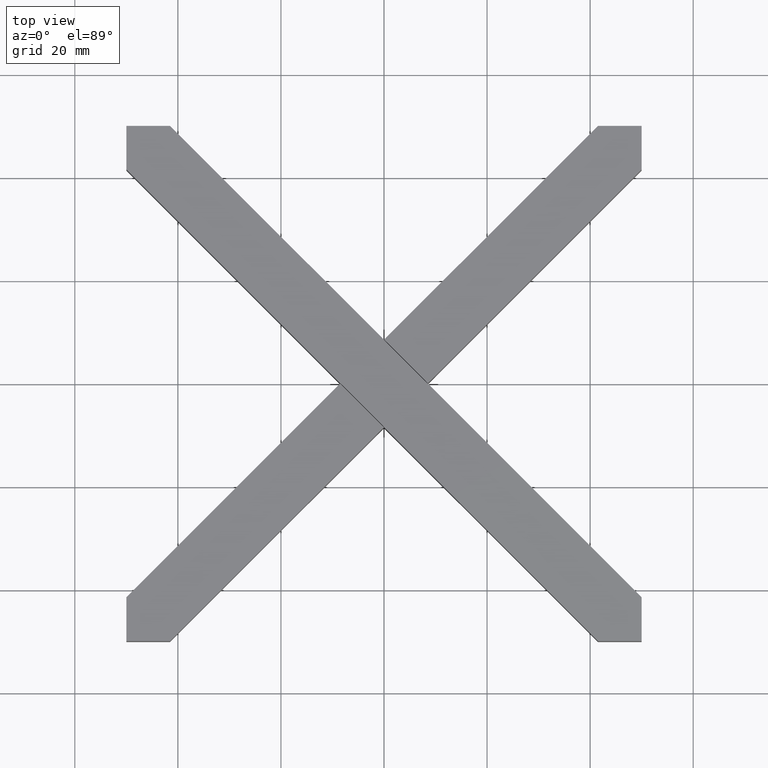
[diagram: clean part render]
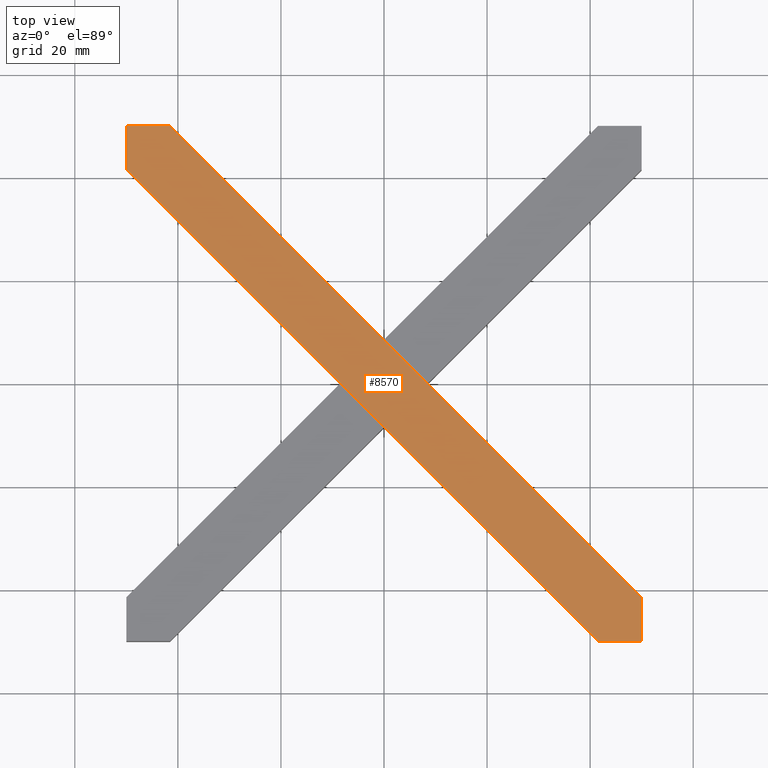
[diagram: same view with one face highlighted and labeled with its STEP entity id]
A machine part, top view. The second image highlights one B-rep face of the part: STEP entity #8570.
In plain terms, the highlighted planar face has unit normal (-0, 0, 1).
Its self-contained STEP definition (entity closure, byte-faithful):
#78 = CARTESIAN_POINT ( 'NONE',  ( -4.242640687119286547, 4.242640687119385134, 12.00000000000000000 ) ) ;
#231 = VERTEX_POINT ( 'NONE', #5825 ) ;
#373 = DIRECTION ( 'NONE',  ( -1.000000000000000000, -0.000000000000000000, -0.000000000000000000 ) ) ;
#466 = CARTESIAN_POINT ( 'NONE',  ( 8.449926035179235129, -0.03535533905932477378, 12.00000000000000000 ) ) ;
#500 = VERTEX_POINT ( 'NONE', #6629 ) ;
#536 = LINE ( 'NONE', #5216, #10159 ) ;
#749 = EDGE_CURVE ( 'NONE', #10505, #13034, #536, .T. ) ;
#862 = CARTESIAN_POINT ( 'NONE',  ( -50.00000000000000000, 41.51471862576143224, 12.00000000000000000 ) ) ;
#916 = DIRECTION ( 'NONE',  ( -0.7071067811865474617, 0.7071067811865475727, -0.000000000000000000 ) ) ;
#1008 = DIRECTION ( 'NONE',  ( -0.7071067811865474617, 0.7071067811865474617, 0.000000000000000000 ) ) ;
#1102 = CARTESIAN_POINT ( 'NONE',  ( -41.51471862576143224, 50.00000000000000000, 12.00000000000000000 ) ) ;
#1143 = EDGE_CURVE ( 'NONE', #231, #5224, #4309, .T. ) ;
#1151 = CARTESIAN_POINT ( 'NONE',  ( 50.00000000000001421, -41.51471862576144645, 12.00000000000000000 ) ) ;
#1245 = VERTEX_POINT ( 'NONE', #6304 ) ;
#1263 = ORIENTED_EDGE ( 'NONE', *, *, #7335, .T. ) ;
#1398 = CARTESIAN_POINT ( 'NONE',  ( -5.847915467843689541E-15, 8.485281374238567764, 12.00000000000000000 ) ) ;
#1446 = CARTESIAN_POINT ( 'NONE',  ( -50.00000000000000000, 50.00000000000000000, 12.00000000000000000 ) ) ;
#1477 = ORIENTED_EDGE ( 'NONE', *, *, #2380, .F. ) ;
#1541 = VECTOR ( 'NONE', #6646, 999.9999999999998863 ) ;
#1671 = VERTEX_POINT ( 'NONE', #13559 ) ;
#1810 = ORIENTED_EDGE ( 'NONE', *, *, #6959, .T. ) ;
#1940 = VERTEX_POINT ( 'NONE', #13445 ) ;
#2081 = CARTESIAN_POINT ( 'NONE',  ( 50.00000000000001421, -41.51471862576144645, 12.00000000000000000 ) ) ;
#2332 = ORIENTED_EDGE ( 'NONE', *, *, #13676, .F. ) ;
#2360 = EDGE_CURVE ( 'NONE', #2839, #3286, #2665, .T. ) ;
#2380 = EDGE_CURVE ( 'NONE', #11008, #1245, #11950, .T. ) ;
#2414 = VECTOR ( 'NONE', #4330, 1000.000000000000114 ) ;
#2602 = DIRECTION ( 'NONE',  ( 1.000000000000000000, 0.000000000000000000, 0.000000000000000000 ) ) ;
#2665 = LINE ( 'NONE', #862, #10564 ) ;
#2839 = VERTEX_POINT ( 'NONE', #3722 ) ;
#3084 = LINE ( 'NONE', #10915, #2414 ) ;
#3130 = LINE ( 'NONE', #466, #10000 ) ;
#3224 = CARTESIAN_POINT ( 'NONE',  ( -8.485281374238573093, -2.378468515890075352E-15, 12.00000000000000000 ) ) ;
#3286 = VERTEX_POINT ( 'NONE', #3224 ) ;
#3596 = CARTESIAN_POINT ( 'NONE',  ( 4.242640687119269671, -4.242640687119368259, 12.00000000000000000 ) ) ;
#3644 = DIRECTION ( 'NONE',  ( 0.000000000000000000, -1.000000000000000000, 0.000000000000000000 ) ) ;
#3672 = ORIENTED_EDGE ( 'NONE', *, *, #4869, .F. ) ;
#3722 = CARTESIAN_POINT ( 'NONE',  ( -50.00000000000000000, 41.51471862576143224, 12.00000000000000000 ) ) ;
#3731 = PLANE ( 'NONE',  #5081 ) ;
#3867 = VECTOR ( 'NONE', #11078, 1000.000000000000114 ) ;
#4012 = ORIENTED_EDGE ( 'NONE', *, *, #14210, .F. ) ;
#4176 = VECTOR ( 'NONE', #373, 1000.000000000000000 ) ;
#4238 = VECTOR ( 'NONE', #3644, 1000.000000000000000 ) ;
#4309 = LINE ( 'NONE', #11348, #7075 ) ;
#4324 = CARTESIAN_POINT ( 'NONE',  ( -1.799775606325937360E-14, -8.485281374238557106, 12.00000000000000000 ) ) ;
#4330 = DIRECTION ( 'NONE',  ( -0.7071067811865392461, -0.7071067811865556774, -0.000000000000000000 ) ) ;
#4369 = ORIENTED_EDGE ( 'NONE', *, *, #8918, .F. ) ;
#4605 = LINE ( 'NONE', #5579, #1541 ) ;
#4869 = EDGE_CURVE ( 'NONE', #1245, #3286, #3084, .T. ) ;
#5081 = AXIS2_PLACEMENT_3D ( 'NONE', #5952, #13574, #2602 ) ;
#5109 = EDGE_CURVE ( 'NONE', #13331, #1671, #4605, .T. ) ;
#5216 = CARTESIAN_POINT ( 'NONE',  ( -41.51471862576143224, 50.00000000000000000, 12.00000000000000000 ) ) ;
#5224 = VERTEX_POINT ( 'NONE', #6348 ) ;
#5256 = CARTESIAN_POINT ( 'NONE',  ( -0.03535533905933258003, 8.449926035179242234, 12.00000000000000000 ) ) ;
#5579 = CARTESIAN_POINT ( 'NONE',  ( 8.485281374238560659, -1.084202172485504434E-14, 12.00000000000000000 ) ) ;
#5823 = CARTESIAN_POINT ( 'NONE',  ( 8.449926035179235129, -0.03535533905932477378, 12.00000000000000000 ) ) ;
#5825 = CARTESIAN_POINT ( 'NONE',  ( 41.51471862576144645, -50.00000000000000000, 12.00000000000000000 ) ) ;
#5887 = DIRECTION ( 'NONE',  ( 1.000000000000000000, 0.000000000000000000, 0.000000000000000000 ) ) ;
#5952 = CARTESIAN_POINT ( 'NONE',  ( 0.000000000000000000, 0.000000000000000000, 12.00000000000000000 ) ) ;
#5997 = DIRECTION ( 'NONE',  ( 0.7071067811865477948, -0.7071067811865473507, 0.000000000000000000 ) ) ;
#6055 = VERTEX_POINT ( 'NONE', #5256 ) ;
#6093 = CARTESIAN_POINT ( 'NONE',  ( -1.564418524095811927E-15, -8.485281374238574870, 12.00000000000000000 ) ) ;
#6214 = LINE ( 'NONE', #5823, #6914 ) ;
#6304 = CARTESIAN_POINT ( 'NONE',  ( -8.449926035179245787, 0.03535533905932564114, 12.00000000000000000 ) ) ;
#6348 = CARTESIAN_POINT ( 'NONE',  ( 50.00000000000001421, -50.00000000000000000, 12.00000000000000000 ) ) ;
#6434 = ORIENTED_EDGE ( 'NONE', *, *, #10160, .F. ) ;
#6587 = ORIENTED_EDGE ( 'NONE', *, *, #11498, .T. ) ;
#6629 = CARTESIAN_POINT ( 'NONE',  ( -50.00000000000000000, 50.00000000000000000, 12.00000000000000000 ) ) ;
#6630 = CARTESIAN_POINT ( 'NONE',  ( 0.03535533905931002863, -8.449926035179231576, 12.00000000000000000 ) ) ;
#6646 = DIRECTION ( 'NONE',  ( -0.7071067811865477948, 0.7071067811865473507, -0.000000000000000000 ) ) ;
#6792 = ORIENTED_EDGE ( 'NONE', *, *, #2360, .T. ) ;
#6914 = VECTOR ( 'NONE', #13486, 1000.000000000000114 ) ;
#6932 = CARTESIAN_POINT ( 'NONE',  ( -50.00000000000000000, 50.00000000000000000, 12.00000000000000000 ) ) ;
#6959 = EDGE_CURVE ( 'NONE', #500, #2839, #13174, .T. ) ;
#7075 = VECTOR ( 'NONE', #5887, 1000.000000000000000 ) ;
#7250 = ORIENTED_EDGE ( 'NONE', *, *, #749, .T. ) ;
#7335 = EDGE_CURVE ( 'NONE', #11810, #231, #11623, .T. ) ;
#7802 = EDGE_CURVE ( 'NONE', #5224, #13331, #9551, .T. ) ;
#8027 = VECTOR ( 'NONE', #5997, 999.9999999999998863 ) ;
#8152 = LINE ( 'NONE', #1446, #4176 ) ;
#8439 = DIRECTION ( 'NONE',  ( 0.7071067811865474617, -0.7071067811865474617, -0.000000000000000000 ) ) ;
#8570 = ADVANCED_FACE ( 'NONE', ( #10087 ), #3731, .T. ) ;
#8741 = ORIENTED_EDGE ( 'NONE', *, *, #7802, .T. ) ;
#8804 = DIRECTION ( 'NONE',  ( -0.000000000000000000, 1.000000000000000000, -0.000000000000000000 ) ) ;
#8918 = EDGE_CURVE ( 'NONE', #10505, #6055, #11957, .T. ) ;
#9142 = EDGE_LOOP ( 'NONE', ( #2332, #4012, #4369, #7250, #6587, #1810, #6792, #3672, #1477, #6434, #1263, #11169, #8741, #11368 ) ) ;
#9551 = LINE ( 'NONE', #1151, #11954 ) ;
#9700 = CARTESIAN_POINT ( 'NONE',  ( 0.03535533905931007720, -8.449926035179228023, 12.00000000000000000 ) ) ;
#10000 = VECTOR ( 'NONE', #8439, 1000.000000000000114 ) ;
#10087 = FACE_OUTER_BOUND ( 'NONE', #9142, .T. ) ;
#10159 = VECTOR ( 'NONE', #916, 1000.000000000000000 ) ;
#10160 = EDGE_CURVE ( 'NONE', #11810, #11008, #10214, .T. ) ;
#10214 = LINE ( 'NONE', #3596, #10557 ) ;
#10505 = VERTEX_POINT ( 'NONE', #1398 ) ;
#10557 = VECTOR ( 'NONE', #13342, 1000.000000000000114 ) ;
#10564 = VECTOR ( 'NONE', #10779, 1000.000000000000000 ) ;
#10779 = DIRECTION ( 'NONE',  ( 0.7071067811865474617, -0.7071067811865475727, 0.000000000000000000 ) ) ;
#10915 = CARTESIAN_POINT ( 'NONE',  ( -8.520636713297900400, -0.03535533905932911058, 12.00000000000000000 ) ) ;
#11008 = VERTEX_POINT ( 'NONE', #9700 ) ;
#11078 = DIRECTION ( 'NONE',  ( -0.7071067811865556774, -0.7071067811865392461, 0.000000000000000000 ) ) ;
#11169 = ORIENTED_EDGE ( 'NONE', *, *, #1143, .T. ) ;
#11348 = CARTESIAN_POINT ( 'NONE',  ( 41.51471862576144645, -50.00000000000000000, 12.00000000000000000 ) ) ;
#11368 = ORIENTED_EDGE ( 'NONE', *, *, #5109, .T. ) ;
#11498 = EDGE_CURVE ( 'NONE', #13034, #500, #8152, .T. ) ;
#11623 = LINE ( 'NONE', #6093, #8027 ) ;
#11810 = VERTEX_POINT ( 'NONE', #4324 ) ;
#11950 = LINE ( 'NONE', #6630, #13995 ) ;
#11954 = VECTOR ( 'NONE', #8804, 1000.000000000000000 ) ;
#11957 = LINE ( 'NONE', #78, #3867 ) ;
#13034 = VERTEX_POINT ( 'NONE', #1102 ) ;
#13174 = LINE ( 'NONE', #6932, #4238 ) ;
#13331 = VERTEX_POINT ( 'NONE', #2081 ) ;
#13342 = DIRECTION ( 'NONE',  ( 0.7071067811865556774, 0.7071067811865392461, 0.000000000000000000 ) ) ;
#13445 = CARTESIAN_POINT ( 'NONE',  ( 8.449926035179235129, -0.03535533905932477378, 12.00000000000000000 ) ) ;
#13486 = DIRECTION ( 'NONE',  ( 0.7071067811865392461, 0.7071067811865556774, 0.000000000000000000 ) ) ;
#13559 = CARTESIAN_POINT ( 'NONE',  ( 8.485281374238553553, -4.038653092508504017E-15, 12.00000000000000000 ) ) ;
#13574 = DIRECTION ( 'NONE',  ( -0.000000000000000000, 0.000000000000000000, 1.000000000000000000 ) ) ;
#13676 = EDGE_CURVE ( 'NONE', #1940, #1671, #6214, .T. ) ;
#13995 = VECTOR ( 'NONE', #1008, 1000.000000000000114 ) ;
#14210 = EDGE_CURVE ( 'NONE', #6055, #1940, #3130, .T. ) ;